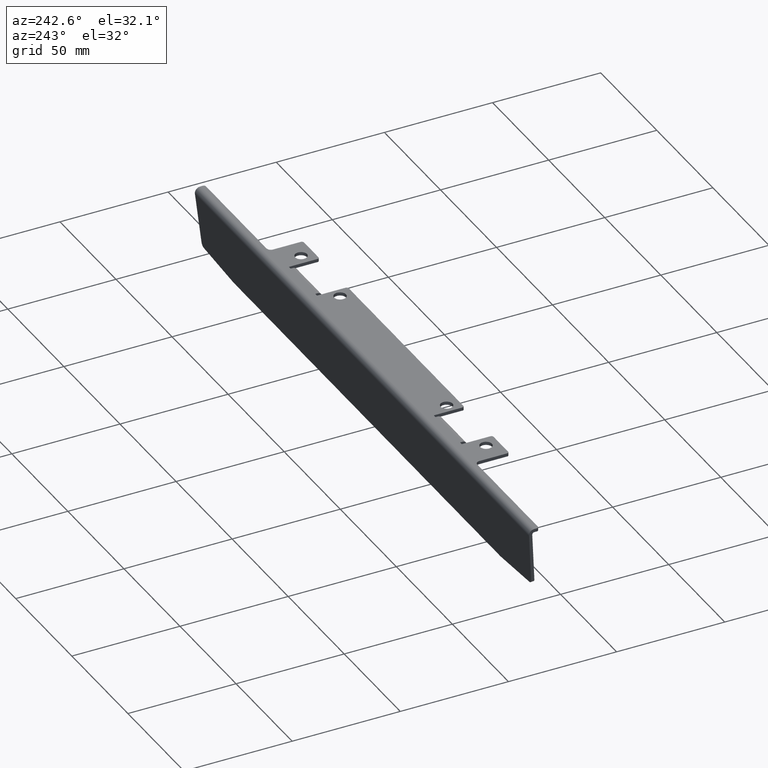
[diagram: clean part render]
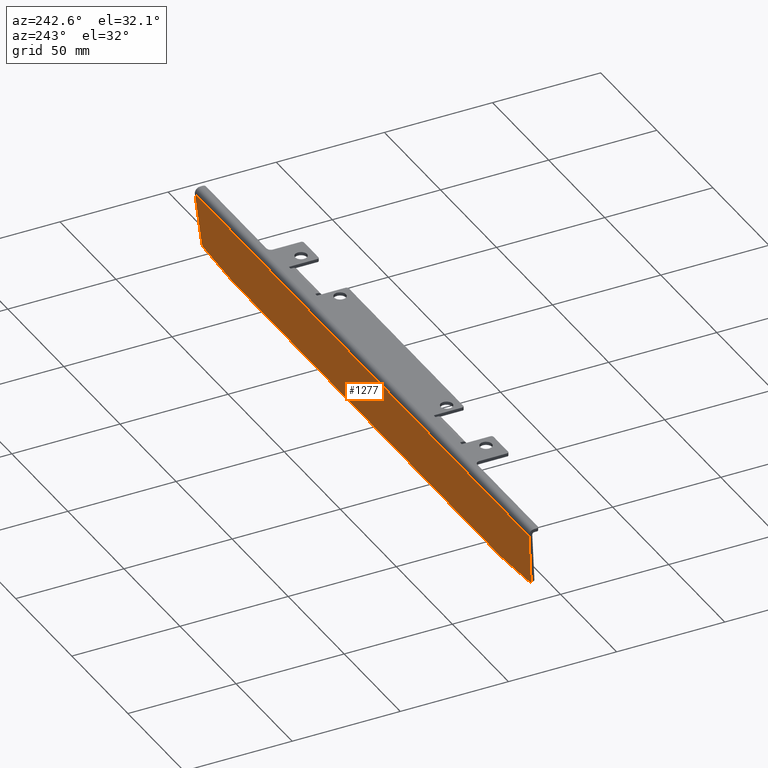
[diagram: same view with one face highlighted and labeled with its STEP entity id]
A machine part, auxiliary view. The second image highlights one B-rep face of the part: STEP entity #1277.
In plain terms, the highlighted planar face has unit normal (0, -0.9962, 0.0872).
Its self-contained STEP definition (entity closure, byte-faithful):
#12 = AXIS2_PLACEMENT_3D ( 'NONE', #1189, #1598, #1210 ) ;
#19 = VERTEX_POINT ( 'NONE', #1365 ) ;
#51 = LINE ( 'NONE', #87, #1120 ) ;
#64 = EDGE_CURVE ( 'NONE', #1142, #19, #1359, .T. ) ;
#80 = EDGE_CURVE ( 'NONE', #1551, #2325, #1857, .T. ) ;
#87 = CARTESIAN_POINT ( 'NONE',  ( -149.0000000000000000, 14.06244609240786800, -2.717889356869136900 ) ) ;
#127 = EDGE_CURVE ( 'NONE', #1958, #1142, #189, .T. ) ;
#176 = CIRCLE ( 'NONE', #554, 2.000000000000001300 ) ;
#189 = LINE ( 'NONE', #277, #1347 ) ;
#227 = CIRCLE ( 'NONE', #1918, 2.000000000000001300 ) ;
#255 = VECTOR ( 'NONE', #1866, 1000.000000000000000 ) ;
#265 = EDGE_CURVE ( 'NONE', #19, #1893, #1192, .T. ) ;
#277 = CARTESIAN_POINT ( 'NONE',  ( 148.0051024725984500, 13.07133445046593100, -14.04634726214157100 ) ) ;
#323 = LINE ( 'NONE', #1124, #255 ) ;
#356 = AXIS2_PLACEMENT_3D ( 'NONE', #2290, #1161, #1358 ) ;
#366 = CARTESIAN_POINT ( 'NONE',  ( 119.0869895996781800, 11.68300010918037700, -29.91508139675578100 ) ) ;
#370 = ORIENTED_EDGE ( 'NONE', *, *, #1213, .F. ) ;
#400 = CARTESIAN_POINT ( 'NONE',  ( 146.9700343219225500, 12.04020504659899200, -25.83221027925625900 ) ) ;
#426 = CARTESIAN_POINT ( 'NONE',  ( 118.9126781141828500, 11.85664828684730000, -27.93027364374357500 ) ) ;
#435 = ORIENTED_EDGE ( 'NONE', *, *, #2194, .T. ) ;
#439 = PLANE ( 'NONE',  #1728 ) ;
#486 = CARTESIAN_POINT ( 'NONE',  ( -118.9126781141829100, 11.68233680135199200, -29.92266303992706300 ) ) ;
#511 = EDGE_LOOP ( 'NONE', ( #370, #435, #969, #871, #651, #1832, #875, #861, #1927, #2182 ) ) ;
#529 = DIRECTION ( 'NONE',  ( 0.08715574274765837400, -0.08682408883346184900, -0.9924038765061041800 ) ) ;
#554 = AXIS2_PLACEMENT_3D ( 'NONE', #426, #1737, #1374 ) ;
#578 = CARTESIAN_POINT ( 'NONE',  ( -146.9700343219225300, 12.04020504659899000, -25.83221027925626600 ) ) ;
#598 = DIRECTION ( 'NONE',  ( 0.0000000000000000000, -0.9961946980917458800, 0.08715574274765486300 ) ) ;
#651 = ORIENTED_EDGE ( 'NONE', *, *, #127, .T. ) ;
#758 = DIRECTION ( 'NONE',  ( -1.000000000000000000, 0.0000000000000000000, 0.0000000000000000000 ) ) ;
#861 = ORIENTED_EDGE ( 'NONE', *, *, #1248, .T. ) ;
#862 = DIRECTION ( 'NONE',  ( -0.08715574274765836000, -0.08682408883346184900, -0.9924038765061041800 ) ) ;
#868 = EDGE_CURVE ( 'NONE', #1817, #1975, #1734, .T. ) ;
#869 = VECTOR ( 'NONE', #2385, 1000.000000000000000 ) ;
#871 = ORIENTED_EDGE ( 'NONE', *, *, #1565, .F. ) ;
#875 = ORIENTED_EDGE ( 'NONE', *, *, #265, .T. ) ;
#895 = VERTEX_POINT ( 'NONE', #1089 ) ;
#969 = ORIENTED_EDGE ( 'NONE', *, *, #868, .F. ) ;
#1089 = CARTESIAN_POINT ( 'NONE',  ( -145.1519564112343500, 11.88174911591985800, -27.64336985460154500 ) ) ;
#1120 = VECTOR ( 'NONE', #1251, 1000.000000000000000 ) ;
#1124 = CARTESIAN_POINT ( 'NONE',  ( -3.411915825591478300, 10.80096154057866200, -39.99682836892650100 ) ) ;
#1127 = EDGE_CURVE ( 'NONE', #1194, #1551, #1562, .T. ) ;
#1142 = VERTEX_POINT ( 'NONE', #400 ) ;
#1151 = CARTESIAN_POINT ( 'NONE',  ( 148.9999999999999700, 14.06244609240786600, -2.717889356869138700 ) ) ;
#1161 = DIRECTION ( 'NONE',  ( -0.0000000000000000000, 0.9961946980917457700, -0.08715574274765484900 ) ) ;
#1168 = VECTOR ( 'NONE', #529, 1000.000000000000100 ) ;
#1183 = CARTESIAN_POINT ( 'NONE',  ( -144.9776449257390400, 12.05539729358678300, -25.65856210158933600 ) ) ;
#1189 = CARTESIAN_POINT ( 'NONE',  ( -118.9126781141829100, 11.85664828684730000, -27.93027364374357500 ) ) ;
#1192 = LINE ( 'NONE', #1618, #869 ) ;
#1193 = DIRECTION ( 'NONE',  ( -0.0000000000000000000, 0.9961946980917457700, -0.08715574274765484900 ) ) ;
#1194 = VERTEX_POINT ( 'NONE', #2072 ) ;
#1210 = DIRECTION ( 'NONE',  ( 0.0000000000000000000, -0.08715574274765521000, -0.9961946980917457700 ) ) ;
#1213 = EDGE_CURVE ( 'NONE', #895, #2325, #323, .T. ) ;
#1248 = EDGE_CURVE ( 'NONE', #1893, #1194, #176, .T. ) ;
#1251 = DIRECTION ( 'NONE',  ( -1.000000000000000000, 1.010844195836927400E-018, 1.155400202835925200E-017 ) ) ;
#1270 = CARTESIAN_POINT ( 'NONE',  ( -148.0051024725984200, 13.07133445046593000, -14.04634726214157100 ) ) ;
#1277 = ADVANCED_FACE ( 'NONE', ( #1792 ), #439, .F. ) ;
#1347 = VECTOR ( 'NONE', #862, 1000.000000000000200 ) ;
#1358 = DIRECTION ( 'NONE',  ( 0.0000000000000000000, -0.08715574274765521000, -0.9961946980917457700 ) ) ;
#1359 = CIRCLE ( 'NONE', #356, 2.000000000000001300 ) ;
#1365 = CARTESIAN_POINT ( 'NONE',  ( 145.1519564112343800, 11.88174911591986100, -27.64336985460153400 ) ) ;
#1374 = DIRECTION ( 'NONE',  ( -1.387778780781444700E-014, -0.08715574274765521000, -0.9961946980917457700 ) ) ;
#1384 = DIRECTION ( 'NONE',  ( 0.0000000000000000000, -0.08715574274765521000, -0.9961946980917457700 ) ) ;
#1551 = VERTEX_POINT ( 'NONE', #486 ) ;
#1562 = LINE ( 'NONE', #1889, #2318 ) ;
#1565 = EDGE_CURVE ( 'NONE', #1958, #1817, #51, .T. ) ;
#1598 = DIRECTION ( 'NONE',  ( -0.0000000000000000000, 0.9961946980917457700, -0.08715574274765484900 ) ) ;
#1618 = CARTESIAN_POINT ( 'NONE',  ( 3.411915825591477900, 10.80096154057866500, -39.99682836892649400 ) ) ;
#1728 = AXIS2_PLACEMENT_3D ( 'NONE', #1744, #598, #2118 ) ;
#1734 = LINE ( 'NONE', #1270, #1168 ) ;
#1737 = DIRECTION ( 'NONE',  ( -0.0000000000000000000, 0.9961946980917457700, -0.08715574274765484900 ) ) ;
#1744 = CARTESIAN_POINT ( 'NONE',  ( 0.0000000000000000000, 14.19989399636807700, -1.146852625698961300 ) ) ;
#1792 = FACE_OUTER_BOUND ( 'NONE', #511, .T. ) ;
#1817 = VERTEX_POINT ( 'NONE', #2212 ) ;
#1832 = ORIENTED_EDGE ( 'NONE', *, *, #64, .T. ) ;
#1857 = CIRCLE ( 'NONE', #12, 2.000000000000001300 ) ;
#1866 = DIRECTION ( 'NONE',  ( 0.9961946980917455500, -0.007596123493895701000, -0.08682408883346542900 ) ) ;
#1889 = CARTESIAN_POINT ( 'NONE',  ( 0.0000000000000000000, 11.68233680135199200, -29.92266303992706300 ) ) ;
#1893 = VERTEX_POINT ( 'NONE', #366 ) ;
#1918 = AXIS2_PLACEMENT_3D ( 'NONE', #1183, #1193, #1384 ) ;
#1927 = ORIENTED_EDGE ( 'NONE', *, *, #1127, .T. ) ;
#1958 = VERTEX_POINT ( 'NONE', #1151 ) ;
#1975 = VERTEX_POINT ( 'NONE', #578 ) ;
#2072 = CARTESIAN_POINT ( 'NONE',  ( 118.9126781141828500, 11.68233680135199200, -29.92266303992706300 ) ) ;
#2118 = DIRECTION ( 'NONE',  ( 0.0000000000000000000, -0.08715574274765486300, -0.9961946980917458800 ) ) ;
#2182 = ORIENTED_EDGE ( 'NONE', *, *, #80, .T. ) ;
#2194 = EDGE_CURVE ( 'NONE', #895, #1975, #227, .T. ) ;
#2212 = CARTESIAN_POINT ( 'NONE',  ( -149.0000000000000600, 14.06244609240786600, -2.717889356869137800 ) ) ;
#2290 = CARTESIAN_POINT ( 'NONE',  ( 144.9776449257390700, 12.05539729358678400, -25.65856210158932500 ) ) ;
#2318 = VECTOR ( 'NONE', #758, 1000.000000000000000 ) ;
#2325 = VERTEX_POINT ( 'NONE', #2331 ) ;
#2331 = CARTESIAN_POINT ( 'NONE',  ( -119.0869895996782300, 11.68300010918037300, -29.91508139675578400 ) ) ;
#2385 = DIRECTION ( 'NONE',  ( -0.9961946980917455500, -0.007596123493895701000, -0.08682408883346542900 ) ) ;